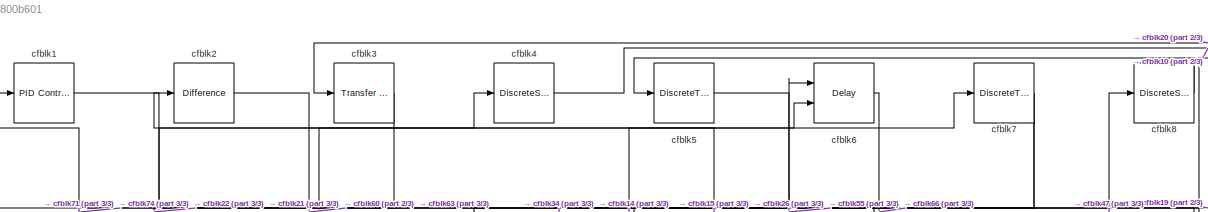
[diagram: root canvas - part 1/3, full width, top band]
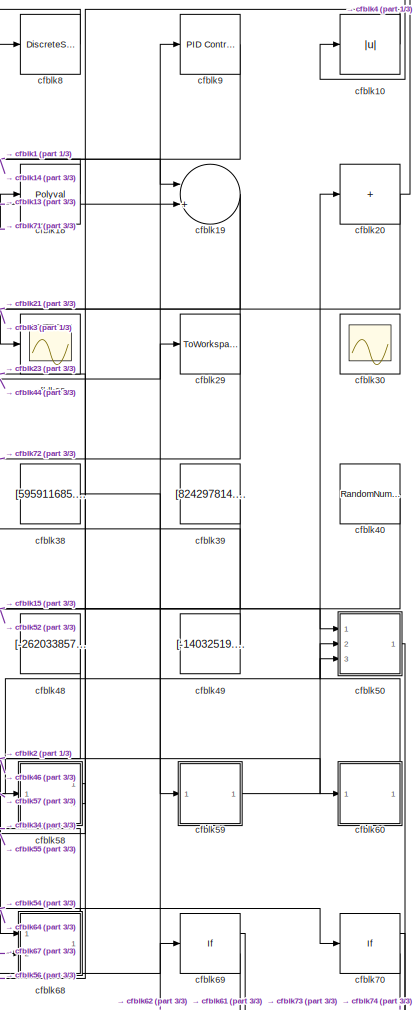
[diagram: root canvas - part 2/3, right side, full height]
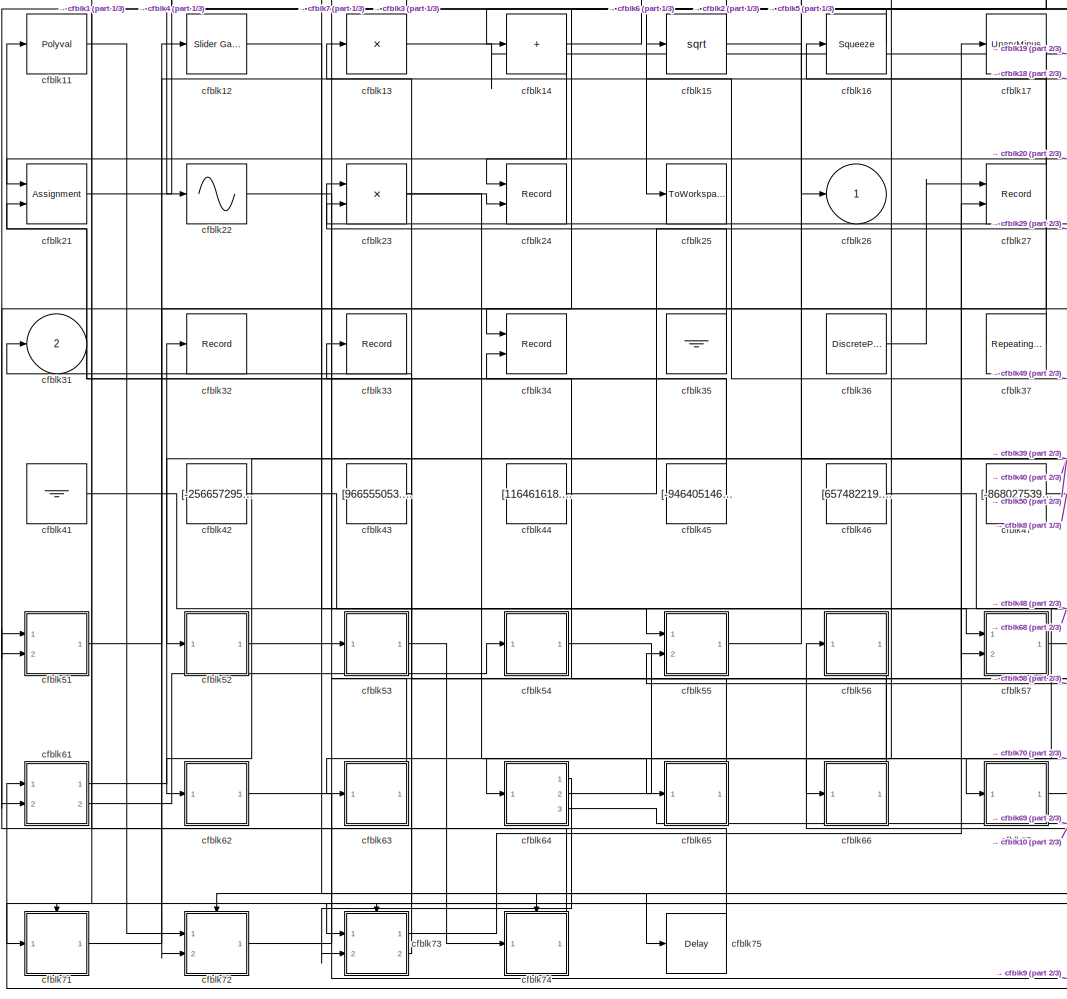
[diagram: root canvas - part 3/3, center side, full height]
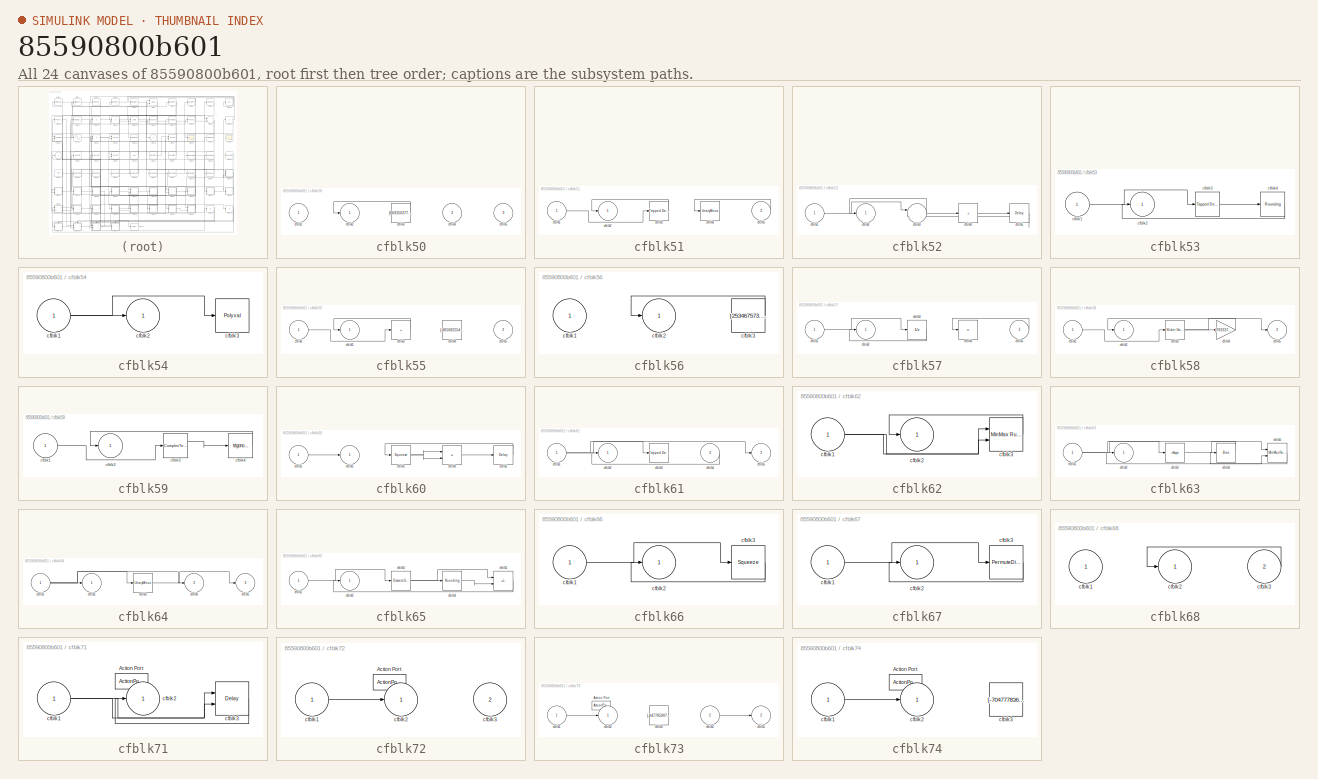
[diagram: thumbnail index - all 24 canvases of the model, root first then tree order]
MODEL slx_85590800b601
KIND model
CONFIG AbsTol = auto
CONFIG EnableMultiTasking = off
CONFIG FixedStep = auto
CONFIG MaxStep = auto
CONFIG MinStep = auto
CONFIG RelTol = 1e-3
CONFIG SampleTimeConstraint = Unconstrained
CONFIG SolverName = VariableStepAuto
CONFIG StartTime = 0.0
CONFIG StopTime = 10.0
BLOCK [Reference] cfblk1  REF=slpidlib/PID Controller
  Ports = [1, 1]
  SourceBlock = slpidlib/PID Controller
  SourceProductBaseCode = SL
  SourceType = PID 1dof
BLOCK [Abs] cfblk10
  SaturateOnIntegerOverflow = off
BLOCK [Polyval] cfblk11
  Coefs = [ +2.081618890e-019, -1.441693666e-014, +4.719686976e-010, -8.536869453e-006, +1.621573104e-001, -8.087801117e+001 ]
BLOCK [Reference] cfblk12  REF=simulink/Math
Operations/Slider
Gain
  Ports = [1, 1]
  SourceBlock = simulink/Math\nOperations/Slider\nGain
  SourceProductBaseCode = SL
  SourceType = Slider Gain
BLOCK [Product] cfblk13
  Inputs = *
  Ports = [1, 1]
BLOCK [Sum] cfblk14
  IconShape = rectangular
  Inputs = +
  Ports = [1, 1]
BLOCK [Sqrt] cfblk15
BLOCK [Squeeze] cfblk16
BLOCK [UnaryMinus] cfblk17
BLOCK [Polyval] cfblk18
  Coefs = [ +2.081618890e-019, -1.441693666e-014, +4.719686976e-010, -8.536869453e-006, +1.621573104e-001, -8.087801117e+001 ]
BLOCK [Sum] cfblk19
  Inputs = |++
  Ports = [2, 1]
BLOCK [Reference] cfblk2  REF=simulink/Discrete/Difference
  Ports = [1, 1]
  SourceBlock = simulink/Discrete/Difference
  SourceProductBaseCode = SL
  SourceType = Difference
BLOCK [Sum] cfblk20
  IconShape = rectangular
  Inputs = +
  Ports = [1, 1]
BLOCK [Assignment] cfblk21
  DiagnosticForDimensions = Warning
  IndexOptions = Index vector (dialog)
  Indices = 1
  OutputSizes = 1
  Ports = [2, 1]
BLOCK [Sin] cfblk22
  Ports = [1, 1]
  SampleTime = 0
  TimeSource = Use external signal
BLOCK [Product] cfblk23
  Inputs = **
  Ports = [2, 1]
BLOCK [Record] cfblk24
  CompatibilityTag = XY
  FileSettingsInternal = {"entries":[{"content":{"excelSettings":{"content":{},"type":"Streamout.ExcelSettings"}},"type":"Streamout.FileSettingStorage","uuid":"e644294e-47c8-4157-a70f-b86bf0f91ce5"}],"packageUris":["http://schema.mathworks.com/mf0/streamout_blocks/R2020a"],"version":"1.0"}
  Layout = [1 1]
  Ports = [2]
  SignalsInternal = {"entries":[{"content":{"signals":[{"content":{"blockPath":["sampleModel295/cfblk24"],"channel":[],"dimensions":[1],"domain":"sampleModel295/cfblk24","lineColor":"#a2142f","plots":[1],"port":1,"sid":[""],"signalID":12729,"signalName":"cfblk14"},"type":"RecordBlkView.Signal","uuid":"f10aec68-513e-477d-a584-377b7a0421ce"},{"content":{"blockPath":["sampleModel295/cfblk24"],"channel":[],"dimensions":[...<+387ch>
  VisualizationBindings = {"xyplotplugin":{"info":[{"series":[{"bindingParametersList":[{"parameter":"X-Axis","signalID":12729,"signalName":"cfblk14"},{"parameter":"Y-Axis","signalID":12733,"signalName":"cfblk23"}],"seriesID":57202}],"subplotID":1}]}}
BLOCK [ToWorkspace] cfblk25
  FixptAsFi = on
  MaxDataPoints = inf
  Ports = [1]
  SampleTime = -1
  SaveFormat = Timeseries
  VariableName = fpwwlkk
BLOCK [Outport] cfblk26
BLOCK [Record] cfblk27
  CompatibilityTag = XY
  FileSettingsInternal = {"entries":[{"content":{"excelSettings":{"content":{},"type":"Streamout.ExcelSettings"}},"type":"Streamout.FileSettingStorage","uuid":"b7e32862-4def-4129-82f2-dd9595ad73df"}],"packageUris":["http://schema.mathworks.com/mf0/streamout_blocks/R2020a"],"version":"1.0"}
  Layout = [1 1]
  Ports = [2]
  SignalsInternal = {"entries":[{"content":{"signals":[{"content":{"blockPath":["sampleModel295/cfblk27"],"channel":[],"dimensions":[1],"domain":"sampleModel295/cfblk27","lineColor":"#a2142f","plots":[1],"port":1,"sid":[""],"signalID":12737,"signalName":"cfblk36"},"type":"RecordBlkView.Signal","uuid":"85d272bf-6785-403c-95ae-8b25dcc783db"},{"content":{"blockPath":["sampleModel295/cfblk27"],"channel":[],"dimensions":[...<+387ch>
  VisualizationBindings = {"xyplotplugin":{"info":[{"series":[{"bindingParametersList":[{"parameter":"X-Axis","signalID":12737,"signalName":"cfblk36"},{"parameter":"Y-Axis","signalID":12741,"signalName":"cfblk73:1"}],"seriesID":37411}],"subplotID":1}]}}
BLOCK [Scope] cfblk28
  Floating = off
  NumInputPorts = 1
  Ports = [1]
BLOCK [ToWorkspace] cfblk29
  FixptAsFi = on
  MaxDataPoints = inf
  Ports = [1]
  SampleTime = -1
  SaveFormat = Timeseries
  VariableName = cmgpbdm
BLOCK [Reference] cfblk3  REF=simulink/Discrete/Transfer Fcn
Real Zero
  Ports = [1, 1]
  SourceBlock = simulink/Discrete/Transfer Fcn\nReal Zero
  SourceProductBaseCode = SL
  SourceType = Transfer Fcn Real Zero
BLOCK [Scope] cfblk30
  Floating = on
  NumInputPorts = 1
  Ports = []
BLOCK [Outport] cfblk31
  Port = 2
BLOCK [Record] cfblk32
  FileSettingsInternal = {"entries":[{"content":{"excelSettings":{"content":{},"type":"Streamout.ExcelSettings"}},"type":"Streamout.FileSettingStorage","uuid":"9b634011-b706-471f-8d8c-3277855acf29"}],"packageUris":["http://schema.mathworks.com/mf0/streamout_blocks/R2020a"],"version":"1.0"}
  Ports = [1]
  SignalsInternal = {"entries":[{"content":{"signals":[{"content":{"blockPath":["sampleModel295/cfblk32"],"channel":[],"dimensions":[1],"domain":"sampleModel295/cfblk32","lineColor":"#a2142f","plots":[1],"port":1,"sid":[""],"signalID":12745,"signalName":"cfblk61:1"},"type":"RecordBlkView.Signal","uuid":"713a4e37-51c4-4904-a6cc-f5381fe626eb"}]},"type":"RecordBlkView.InputSignals","uuid":"94e50211-0dd7-4ae3-a9db-9c1dd3...<+100ch>
  VisualizationBindings = {"sparklinesplugin":{"info":[{"bindingParametersList":[],"subplotID":1}]}}
BLOCK [Record] cfblk33
  FileSettingsInternal = {"entries":[{"content":{"excelSettings":{"content":{},"type":"Streamout.ExcelSettings"}},"type":"Streamout.FileSettingStorage","uuid":"9bcf9a1a-6272-4e85-9a14-13b62b86e8eb"}],"packageUris":["http://schema.mathworks.com/mf0/streamout_blocks/R2020a"],"version":"1.0"}
  Ports = [1]
  SignalsInternal = {"entries":[{"content":{"signals":[{"content":{"blockPath":["sampleModel295/cfblk33"],"channel":[],"dimensions":[1,1],"domain":"sampleModel295/cfblk33","lineColor":"#139fff","plots":[1],"port":1,"sid":[""],"signalID":12749,"signalName":"cfblk65"},"type":"RecordBlkView.Signal","uuid":"4cbff2d7-f26b-4c35-8c5f-df1d9d9f7d13"}]},"type":"RecordBlkView.InputSignals","uuid":"b3f169fd-622d-4759-a4e5-6eade6...<+100ch>
  VisualizationBindings = {"sparklinesplugin":{"info":[{"bindingParametersList":[],"subplotID":1}]}}
BLOCK [Record] cfblk34
  CompatibilityTag = XY
  FileSettingsInternal = {"entries":[{"content":{"excelSettings":{"content":{},"type":"Streamout.ExcelSettings"}},"type":"Streamout.FileSettingStorage","uuid":"ad245534-a126-491f-ae91-c836af0e3ad9"}],"packageUris":["http://schema.mathworks.com/mf0/streamout_blocks/R2020a"],"version":"1.0"}
  Layout = [1 1]
  Ports = [2]
  SignalsInternal = {"entries":[{"content":{"signals":[{"content":{"blockPath":["sampleModel295/cfblk34"],"channel":[],"dimensions":[1],"domain":"sampleModel295/cfblk34","lineColor":"#a2142f","plots":[1],"port":1,"sid":[""],"signalID":12753,"signalName":"cfblk7"},"type":"RecordBlkView.Signal","uuid":"bce65451-ca10-46cc-b2c4-c9a99149bc20"},{"content":{"blockPath":["sampleModel295/cfblk34"],"channel":[],"dimensions":[1...<+386ch>
  VisualizationBindings = {"xyplotplugin":{"info":[{"series":[{"bindingParametersList":[{"parameter":"X-Axis","signalID":12753,"signalName":"cfblk7"},{"parameter":"Y-Axis","signalID":12757,"signalName":"cfblk68"}],"seriesID":47423}],"subplotID":1}]}}
BLOCK [Ground] cfblk35
BLOCK [DiscretePulseGenerator] cfblk36
  Amplitude = [-849674981.811508]
  Period = [1552871.382462]
  PhaseDelay = [8.000000]
  Ports = [0, 1]
  PulseType = Time based
  PulseWidth = 5
BLOCK [Reference] cfblk37  REF=simulink/Sources/Repeating
Sequence
Interpolated
  Ports = [0, 1]
  SourceBlock = simulink/Sources/Repeating\nSequence\nInterpolated
  SourceProductBaseCode = SL
  SourceType = Repeating Sequence Interpolated
BLOCK [Constant] cfblk38
  SampleTime = 1
  Value = [595911685.308127]
BLOCK [Constant] cfblk39
  SampleTime = 1
  Value = [824297814.350010]
BLOCK [DiscreteStateSpace] cfblk4
BLOCK [RandomNumber] cfblk40
  Mean = [37993.970635]
  SampleTime = 0.1
  Seed = [560915355.000000]
  Variance = [6255.361900]
BLOCK [Ground] cfblk41
BLOCK [Constant] cfblk42
  SampleTime = 1
  Value = [-256657295.842554]
BLOCK [Constant] cfblk43
  SampleTime = 1
  Value = [966555053.903726]
BLOCK [Constant] cfblk44
  SampleTime = 1
  Value = [116461618.537757]
BLOCK [Constant] cfblk45
  SampleTime = 1
  Value = [-946405146.891173]
BLOCK [Constant] cfblk46
  SampleTime = 1
  Value = [657482219.567988]
BLOCK [Constant] cfblk47
  SampleTime = 1
  Value = [-868027539.962553]
BLOCK [Constant] cfblk48
  SampleTime = 1
  Value = [-262033857.878237]
BLOCK [Constant] cfblk49
  SampleTime = 1
  Value = [-14032519.531687]
BLOCK [DiscreteTransferFcn] cfblk5
  InputPortMap = u0
  Ports = [1, 1]
  SampleTime = 1
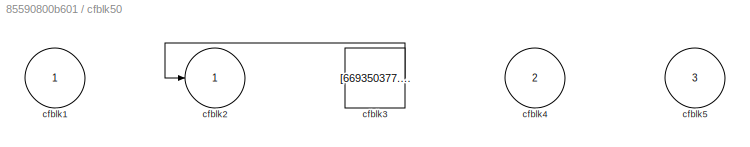
BLOCK [SubSystem] cfblk50
  Ports = [3, 1]
  RequestExecContextInheritance = off
BLOCK [Inport] cfblk50/cfblk1
BLOCK [Outport] cfblk50/cfblk2
BLOCK [Constant] cfblk50/cfblk3
  SampleTime = 1
  Value = [669350377.780139]
BLOCK [Inport] cfblk50/cfblk4
  Port = 2
BLOCK [Inport] cfblk50/cfblk5
  Port = 3
BLOCK [SubSystem] cfblk51
  Ports = [2, 1]
  RequestExecContextInheritance = off
BLOCK [Inport] cfblk51/cfblk1
BLOCK [Outport] cfblk51/cfblk2
BLOCK [Reference] cfblk51/cfblk3  REF=simulink/Discrete/Tapped Delay
  Ports = [1, 1]
  SourceBlock = simulink/Discrete/Tapped Delay
  SourceProductBaseCode = SL
  SourceType = Tapped Delay Line
BLOCK [UnaryMinus] cfblk51/cfblk4
BLOCK [Inport] cfblk51/cfblk5
  Port = 2
BLOCK [SubSystem] cfblk52
  Ports = [1, 1]
  RequestExecContextInheritance = off
BLOCK [Inport] cfblk52/cfblk1
BLOCK [Outport] cfblk52/cfblk2
BLOCK [Sum] cfblk52/cfblk3
  Inputs = |++
  Ports = [2, 1]
BLOCK [Sum] cfblk52/cfblk4
  IconShape = rectangular
  Inputs = +
  Ports = [1, 1]
BLOCK [Delay] cfblk52/cfblk5
  InputPortMap = u0
  Ports = [1, 1]
  SampleTime = 1
BLOCK [SubSystem] cfblk53
  Ports = [1, 1]
  RequestExecContextInheritance = off
BLOCK [Inport] cfblk53/cfblk1
BLOCK [Outport] cfblk53/cfblk2
BLOCK [Reference] cfblk53/cfblk3  REF=simulink/Discrete/Tapped Delay
  Ports = [1, 1]
  SourceBlock = simulink/Discrete/Tapped Delay
  SourceProductBaseCode = SL
  SourceType = Tapped Delay Line
BLOCK [Rounding] cfblk53/cfblk4
BLOCK [SubSystem] cfblk54
  Ports = [1, 1]
  RequestExecContextInheritance = off
BLOCK [Inport] cfblk54/cfblk1
BLOCK [Outport] cfblk54/cfblk2
BLOCK [Polyval] cfblk54/cfblk3
  Coefs = [ +2.081618890e-019, -1.441693666e-014, +4.719686976e-010, -8.536869453e-006, +1.621573104e-001, -8.087801117e+001 ]
BLOCK [SubSystem] cfblk55
  Ports = [2, 1]
  RequestExecContextInheritance = off
BLOCK [Inport] cfblk55/cfblk1
BLOCK [Outport] cfblk55/cfblk2
BLOCK [Sum] cfblk55/cfblk3
  IconShape = rectangular
  Inputs = +
  Ports = [1, 1]
BLOCK [Constant] cfblk55/cfblk4
  SampleTime = 1
  Value = [-865082554.754614]
BLOCK [Inport] cfblk55/cfblk5
  Port = 2
BLOCK [SubSystem] cfblk56
  Ports = [1, 1]
  RequestExecContextInheritance = off
BLOCK [Inport] cfblk56/cfblk1
BLOCK [Outport] cfblk56/cfblk2
BLOCK [Constant] cfblk56/cfblk3
  SampleTime = 1
  Value = [253467573.492037]
BLOCK [SubSystem] cfblk57
  Ports = [2, 1]
  RequestExecContextInheritance = off
BLOCK [Inport] cfblk57/cfblk1
BLOCK [Outport] cfblk57/cfblk2
BLOCK [UnitDelay] cfblk57/cfblk3
  HasFrameUpgradeWarning = on
BLOCK [Product] cfblk57/cfblk4
  Inputs = *
  Ports = [1, 1]
BLOCK [Inport] cfblk57/cfblk5
  Port = 2
BLOCK [SubSystem] cfblk58
  Ports = [1, 2]
  RequestExecContextInheritance = off
BLOCK [Inport] cfblk58/cfblk1
BLOCK [Outport] cfblk58/cfblk2
BLOCK [Reference] cfblk58/cfblk3  REF=simulink/Math
Operations/Slider
Gain
  Ports = [1, 1]
  SourceBlock = simulink/Math\nOperations/Slider\nGain
  SourceProductBaseCode = SL
  SourceType = Slider Gain
BLOCK [Gain] cfblk58/cfblk4
  Gain = [793337003.373609]
BLOCK [Outport] cfblk58/cfblk5
  Port = 2
BLOCK [SubSystem] cfblk59
  Ports = [1, 1]
  RequestExecContextInheritance = off
BLOCK [Inport] cfblk59/cfblk1
BLOCK [Outport] cfblk59/cfblk2
BLOCK [ComplexToRealImag] cfblk59/cfblk3
  Ports = [1, 2]
BLOCK [Trigonometry] cfblk59/cfblk4
  Ports = [1, 1]
BLOCK [Delay] cfblk6
  InputPortMap = u0,e6
  Ports = [2, 1]
  SampleTime = 1
  ShowEnablePort = on
BLOCK [SubSystem] cfblk60
  Ports = [1, 1]
  RequestExecContextInheritance = off
BLOCK [Inport] cfblk60/cfblk1
BLOCK [Outport] cfblk60/cfblk2
BLOCK [Squeeze] cfblk60/cfblk3
BLOCK [Product] cfblk60/cfblk4
  Ports = [2, 1]
BLOCK [Delay] cfblk60/cfblk5
  InputPortMap = u0
  Ports = [1, 1]
  SampleTime = 1
BLOCK [SubSystem] cfblk61
  Ports = [2, 2]
  RequestExecContextInheritance = off
BLOCK [Inport] cfblk61/cfblk1
BLOCK [Outport] cfblk61/cfblk2
BLOCK [Reference] cfblk61/cfblk3  REF=simulink/Discrete/Tapped Delay
  Ports = [1, 1]
  SourceBlock = simulink/Discrete/Tapped Delay
  SourceProductBaseCode = SL
  SourceType = Tapped Delay Line
BLOCK [Inport] cfblk61/cfblk4
  Port = 2
BLOCK [Outport] cfblk61/cfblk5
  Port = 2
BLOCK [SubSystem] cfblk62
  Ports = [1, 1]
  RequestExecContextInheritance = off
BLOCK [Inport] cfblk62/cfblk1
BLOCK [Outport] cfblk62/cfblk2
BLOCK [Reference] cfblk62/cfblk3  REF=simulink/Math
Operations/MinMax
Running
Resettable
  Ports = [2, 1]
  SourceBlock = simulink/Math\nOperations/MinMax\nRunning\nResettable
  SourceProductBaseCode = SL
  SourceType = MinMax Running Resettable
BLOCK [SubSystem] cfblk63
  Ports = [1, 1]
  RequestExecContextInheritance = off
BLOCK [Inport] cfblk63/cfblk1
BLOCK [Outport] cfblk63/cfblk2
BLOCK [Sqrt] cfblk63/cfblk3
  AlgorithmType = Newton-Raphson
  Operator = rSqrt
BLOCK [Bias] cfblk63/cfblk4
  Bias = [457219578.963745]
  SaturateOnIntegerOverflow = off
BLOCK [Reference] cfblk63/cfblk5  REF=simulink/Math
Operations/MinMax
Running
Resettable
  Ports = [2, 1]
  SourceBlock = simulink/Math\nOperations/MinMax\nRunning\nResettable
  SourceProductBaseCode = SL
  SourceType = MinMax Running Resettable
BLOCK [SubSystem] cfblk64
  Ports = [1, 3]
  RequestExecContextInheritance = off
BLOCK [Inport] cfblk64/cfblk1
BLOCK [Outport] cfblk64/cfblk2
BLOCK [UnaryMinus] cfblk64/cfblk3
BLOCK [Outport] cfblk64/cfblk4
  Port = 2
BLOCK [Outport] cfblk64/cfblk5
  Port = 3
BLOCK [SubSystem] cfblk65
  Ports = [1, 1]
  RequestExecContextInheritance = off
BLOCK [Inport] cfblk65/cfblk1
BLOCK [Outport] cfblk65/cfblk2
BLOCK [DiscreteStateSpace] cfblk65/cfblk3
BLOCK [Rounding] cfblk65/cfblk4
BLOCK [Sum] cfblk65/cfblk5
  IconShape = rectangular
  Inputs = +-
  Ports = [2, 1]
BLOCK [SubSystem] cfblk66
  Ports = [1, 1]
  RequestExecContextInheritance = off
BLOCK [Inport] cfblk66/cfblk1
BLOCK [Outport] cfblk66/cfblk2
BLOCK [Squeeze] cfblk66/cfblk3
BLOCK [SubSystem] cfblk67
  Ports = [1, 1]
  RequestExecContextInheritance = off
BLOCK [Inport] cfblk67/cfblk1
BLOCK [Outport] cfblk67/cfblk2
BLOCK [PermuteDimensions] cfblk67/cfblk3
BLOCK [SubSystem] cfblk68
  Ports = [2, 1]
  RequestExecContextInheritance = off
BLOCK [Inport] cfblk68/cfblk1
BLOCK [Outport] cfblk68/cfblk2
BLOCK [Inport] cfblk68/cfblk3
  Port = 2
BLOCK [If] cfblk69
  IfExpression = u1 >= 0
  Ports = [1, 2]
  SampleTime = 1
BLOCK [DiscreteTransferFcn] cfblk7
  InputPortMap = u0
  Ports = [1, 1]
  SampleTime = 1
BLOCK [If] cfblk70
  IfExpression = u1 >= 0
  Ports = [1, 2]
  SampleTime = 1
BLOCK [SubSystem] cfblk71
  Ports = [1, 1, 0, 0, 0, 0, 0, 1]
  RequestExecContextInheritance = off
  TreatAsAtomicUnit = on
BLOCK [ActionPort] cfblk71/Action Port
  ActionPortLabel = if(u1 >= 0)
BLOCK [Inport] cfblk71/cfblk1
BLOCK [Outport] cfblk71/cfblk2
BLOCK [Delay] cfblk71/cfblk3
  InputPortMap = u0,e6
  Ports = [2, 1]
  ShowEnablePort = on
BLOCK [SubSystem] cfblk72
  Ports = [2, 1, 0, 0, 0, 0, 0, 1]
  RequestExecContextInheritance = off
  TreatAsAtomicUnit = on
BLOCK [ActionPort] cfblk72/Action Port
  ActionPortLabel = else
BLOCK [Inport] cfblk72/cfblk1
BLOCK [Outport] cfblk72/cfblk2
BLOCK [Inport] cfblk72/cfblk3
  Port = 2
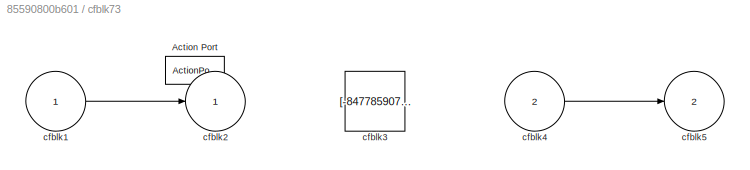
BLOCK [SubSystem] cfblk73
  Ports = [2, 2, 0, 0, 0, 0, 0, 1]
  RequestExecContextInheritance = off
  TreatAsAtomicUnit = on
BLOCK [ActionPort] cfblk73/Action Port
  ActionPortLabel = if(u1 >= 0)
BLOCK [Inport] cfblk73/cfblk1
BLOCK [Outport] cfblk73/cfblk2
BLOCK [Constant] cfblk73/cfblk3
  SampleTime = 1
  Value = [-847785907.115788]
BLOCK [Inport] cfblk73/cfblk4
  Port = 2
BLOCK [Outport] cfblk73/cfblk5
  Port = 2
BLOCK [SubSystem] cfblk74
  Ports = [1, 1, 0, 0, 0, 0, 0, 1]
  RequestExecContextInheritance = off
  TreatAsAtomicUnit = on
BLOCK [ActionPort] cfblk74/Action Port
  ActionPortLabel = else
BLOCK [Inport] cfblk74/cfblk1
BLOCK [Outport] cfblk74/cfblk2
BLOCK [Constant] cfblk74/cfblk3
  SampleTime = 1
  Value = [-704777836.625596]
BLOCK [Delay] cfblk75
  InputPortMap = u0
  Ports = [1, 1]
  SampleTime = 1
BLOCK [DiscreteStateSpace] cfblk8
BLOCK [Reference] cfblk9  REF=slpidlib/PID Controller
  Ports = [1, 1]
  SourceBlock = slpidlib/PID Controller
  SourceProductBaseCode = SL
  SourceType = PID 1dof
LINE cfblk10:1 -> cfblk56:1
LINE cfblk11:1 -> cfblk72:1
LINE cfblk12:1 -> cfblk75:1
LINE cfblk13:1 -> cfblk19:2
NET cfblk14:1 -> cfblk24:1, cfblk6:2
NET cfblk15:1 -> cfblk2:1, cfblk50:1
LINE cfblk16:1 -> cfblk25:1
LINE cfblk17:1 -> cfblk51:2
LINE cfblk18:1 -> cfblk14:1
NET cfblk19:1 -> cfblk28:1, cfblk72:2
LINE cfblk1:1 -> cfblk19:1
NET cfblk20:1 -> cfblk21:1, cfblk3:1
LINE cfblk21:1 -> cfblk4:1
LINE cfblk22:1 -> cfblk57:1
NET cfblk23:1 -> cfblk24:2, cfblk65:1
LINE cfblk2:1 -> cfblk60:1
LINE cfblk35:1 -> cfblk23:1
LINE cfblk36:1 -> cfblk27:1
LINE cfblk37:1 -> cfblk16:1
LINE cfblk38:1 -> cfblk59:1
LINE cfblk39:1 -> cfblk62:1
LINE cfblk3:1 -> cfblk22:1
LINE cfblk40:1 -> cfblk52:1
LINE cfblk41:1 -> cfblk55:1
LINE cfblk42:1 -> cfblk57:2
LINE cfblk43:1 -> cfblk73:1
LINE cfblk44:1 -> cfblk29:1
NET cfblk45:1 -> cfblk11:1, cfblk21:2
LINE cfblk46:1 -> cfblk68:1
LINE cfblk47:1 -> cfblk8:1
LINE cfblk48:1 -> cfblk67:1
LINE cfblk49:1 -> cfblk15:1
LINE cfblk4:1 -> cfblk10:1
LINE cfblk50/cfblk3:1 -> cfblk50/cfblk2:1
LINE cfblk50:1 -> cfblk61:1
LINE cfblk51/cfblk1:1 -> cfblk51/cfblk3:1
LINE cfblk51/cfblk3:1 -> cfblk51/cfblk2:1
LINE cfblk51/cfblk5:1 -> cfblk51/cfblk4:1
LINE cfblk51:1 -> cfblk12:1
LINE cfblk52/cfblk1:1 -> cfblk52/cfblk3:1
NET cfblk52/cfblk3:1 -> cfblk52/cfblk2:1, cfblk52/cfblk4:1
LINE cfblk52/cfblk4:1 -> cfblk52/cfblk5:1
LINE cfblk52/cfblk5:1 -> cfblk52/cfblk3:2
LINE cfblk52:1 -> cfblk53:1
LINE cfblk53/cfblk1:1 -> cfblk53/cfblk3:1
LINE cfblk53/cfblk3:1 -> cfblk53/cfblk4:1
LINE cfblk53/cfblk4:1 -> cfblk53/cfblk2:1
LINE cfblk53:1 -> cfblk74:1
NET cfblk54/cfblk1:1 -> cfblk54/cfblk2:1, cfblk54/cfblk3:1
LINE cfblk54:1 -> cfblk70:1
LINE cfblk55/cfblk1:1 -> cfblk55/cfblk3:1
LINE cfblk55/cfblk3:1 -> cfblk55/cfblk2:1
LINE cfblk55:1 -> cfblk6:1
LINE cfblk56/cfblk3:1 -> cfblk56/cfblk2:1
LINE cfblk56:1 -> cfblk63:1
LINE cfblk57/cfblk1:1 -> cfblk57/cfblk3:1
LINE cfblk57/cfblk3:1 -> cfblk57/cfblk2:1
LINE cfblk57/cfblk5:1 -> cfblk57/cfblk4:1
LINE cfblk57:1 -> cfblk50:3
LINE cfblk58/cfblk1:1 -> cfblk58/cfblk3:1
NET cfblk58/cfblk3:1 -> cfblk58/cfblk4:1, cfblk58/cfblk5:1
LINE cfblk58/cfblk4:1 -> cfblk58/cfblk2:1
LINE cfblk58:1 -> cfblk55:2
LINE cfblk58:2 -> cfblk23:2
LINE cfblk59/cfblk1:1 -> cfblk59/cfblk3:1
LINE cfblk59/cfblk3:1 -> cfblk59/cfblk4:1
LINE cfblk59/cfblk4:1 -> cfblk59/cfblk2:1
LINE cfblk59:1 -> cfblk50:2
LINE cfblk5:1 -> cfblk26:1
LINE cfblk60/cfblk1:1 -> cfblk60/cfblk2:1
NET cfblk60/cfblk3:1 -> cfblk60/cfblk4:1, cfblk60/cfblk4:2
LINE cfblk60/cfblk4:1 -> cfblk60/cfblk5:1
LINE cfblk60/cfblk5:1 -> cfblk60/cfblk3:1
LINE cfblk60:1 -> cfblk20:1
NET cfblk61/cfblk1:1 -> cfblk61/cfblk3:1, cfblk61/cfblk5:1
LINE cfblk61/cfblk4:1 -> cfblk61/cfblk2:1
LINE cfblk61:1 -> cfblk32:1
LINE cfblk61:2 -> cfblk54:1
NET cfblk62/cfblk1:1 -> cfblk62/cfblk3:1, cfblk62/cfblk3:2
LINE cfblk62/cfblk3:1 -> cfblk62/cfblk2:1
LINE cfblk62:1 -> cfblk9:1
NET cfblk63/cfblk1:1 -> cfblk63/cfblk3:1, cfblk63/cfblk5:2
LINE cfblk63/cfblk3:1 -> cfblk63/cfblk5:1
LINE cfblk63/cfblk4:1 -> cfblk63/cfblk2:1
LINE cfblk63/cfblk5:1 -> cfblk63/cfblk4:1
LINE cfblk63:1 -> cfblk7:1
NET cfblk64/cfblk1:1 -> cfblk64/cfblk2:1, cfblk64/cfblk3:1, cfblk64/cfblk4:1
LINE cfblk64/cfblk3:1 -> cfblk64/cfblk5:1
LINE cfblk64:1 -> cfblk73:2
LINE cfblk64:2 -> cfblk58:1
LINE cfblk64:3 -> cfblk69:1
LINE cfblk65/cfblk1:1 -> cfblk65/cfblk3:1
NET cfblk65/cfblk3:1 -> cfblk65/cfblk4:1, cfblk65/cfblk5:1
LINE cfblk65/cfblk4:1 -> cfblk65/cfblk5:2
LINE cfblk65/cfblk5:1 -> cfblk65/cfblk2:1
LINE cfblk65:1 -> cfblk33:1
LINE cfblk66/cfblk1:1 -> cfblk66/cfblk3:1
LINE cfblk66/cfblk3:1 -> cfblk66/cfblk2:1
LINE cfblk66:1 -> cfblk13:1
LINE cfblk67/cfblk1:1 -> cfblk67/cfblk3:1
LINE cfblk67/cfblk3:1 -> cfblk67/cfblk2:1
LINE cfblk67:1 -> cfblk68:2
LINE cfblk68/cfblk3:1 -> cfblk68/cfblk2:1
NET cfblk68:1 -> cfblk34:2, cfblk64:1
LINE cfblk69:1 -> cfblk71:ifaction
LINE cfblk69:2 -> cfblk72:ifaction
LINE cfblk6:1 -> cfblk66:1
LINE cfblk70:1 -> cfblk73:ifaction
LINE cfblk70:2 -> cfblk74:ifaction
NET cfblk71/cfblk1:1 -> cfblk71/cfblk3:1, cfblk71/cfblk3:2
LINE cfblk71/cfblk3:1 -> cfblk71/cfblk2:1
LINE cfblk71:1 -> cfblk18:1
LINE cfblk72/cfblk1:1 -> cfblk72/cfblk2:1
LINE cfblk72:1 -> cfblk17:1
LINE cfblk73/cfblk1:1 -> cfblk73/cfblk2:1
LINE cfblk73/cfblk4:1 -> cfblk73/cfblk5:1
LINE cfblk73:1 -> cfblk27:2
LINE cfblk73:2 -> cfblk31:1
LINE cfblk74/cfblk1:1 -> cfblk74/cfblk2:1
LINE cfblk74:1 -> cfblk1:1
LINE cfblk75:1 -> cfblk51:1
NET cfblk7:1 -> cfblk34:1, cfblk71:1
LINE cfblk8:1 -> cfblk5:1
LINE cfblk9:1 -> cfblk61:2
note: NET lines group one-source signal fan-out (src -> all destinations, sorted); 1:1 wires keep LINE
